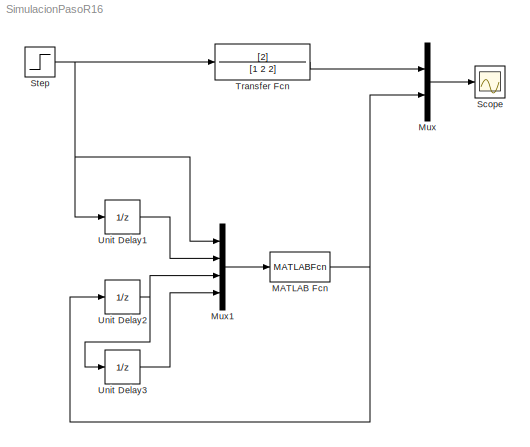
MODEL SimulacionPasoR16
KIND model
BLOCK [MATLABFcn] MATLAB Fcn
  MATLABFcn = sim(net,u)
  Ports = [1, 1]
  SID = 2
BLOCK [Mux] Mux
  DisplayOption = bar
  Inputs = 2
  Ports = [2, 1]
  SID = 3
BLOCK [Mux] Mux1
  DisplayOption = bar
  Ports = [4, 1]
  SID = 4
BLOCK [Scope] Scope
  NumInputPorts = 1
  Ports = [1]
  SID = 5
  ScopeSpecificationString = Simulink.scopes.TimeScopeBlockCfg('CurrentConfiguration', extmgr.ConfigurationSet(extmgr.Configuration('Core','General UI',true),extmgr.Configuration('Core','Source UI',true),extmgr.Configuration('Sources','WiredSimulink',true,'DataLoggingSaveFormat','StructureWithTime','SampleTime','0.1','DataLoggingLimitDataPoints',true,'DataLoggingDecimation','1','DataLoggingDecimateData',true),extmgr.Configura...<+1703ch>
BLOCK [Step] Step
  SID = 6
  SampleTime = 0.1
  Time = 0
BLOCK [TransferFcn] Transfer Fcn
  Denominator = [1 2 2]
  Numerator = [2]
  SID = 7
BLOCK [UnitDelay] Unit Delay1
  SID = 8
  SampleTime = 0.1
BLOCK [UnitDelay] Unit Delay2
  SID = 9
  SampleTime = 0.1
BLOCK [UnitDelay] Unit Delay3
  SID = 10
  SampleTime = 0.1
NET MATLAB Fcn:1 -> Mux:2, Unit Delay2:1
LINE Mux1:1 -> MATLAB Fcn:1
LINE Mux:1 -> Scope:1
NET Step:1 -> Mux1:1, Transfer Fcn:1, Unit Delay1:1
LINE Transfer Fcn:1 -> Mux:1
LINE Unit Delay1:1 -> Mux1:2
NET Unit Delay2:1 -> Mux1:3, Unit Delay3:1
LINE Unit Delay3:1 -> Mux1:4
note: NET lines group one-source signal fan-out (src -> all destinations, sorted); 1:1 wires keep LINE
